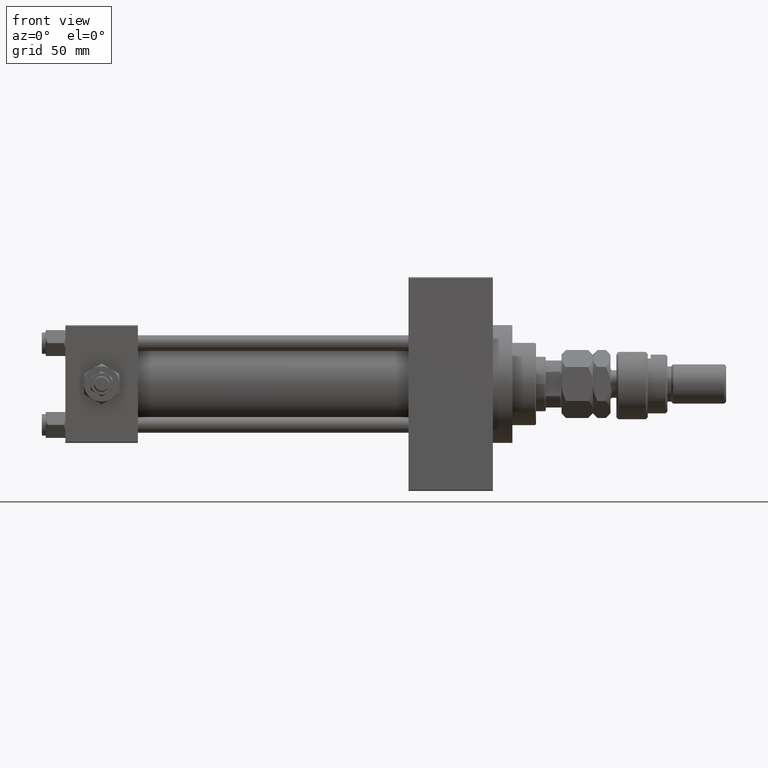
[diagram: clean part render]
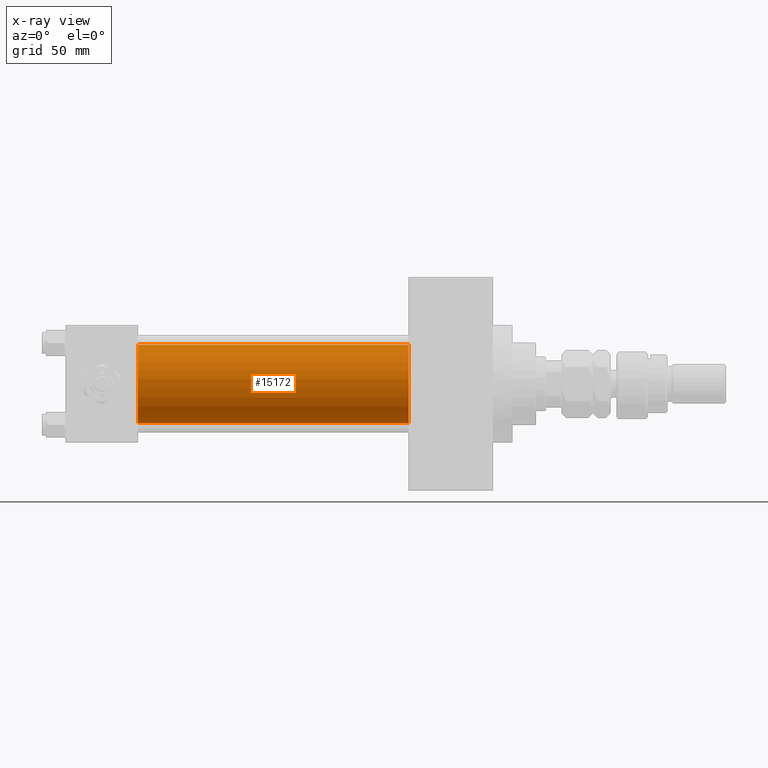
[diagram: x-ray — body ghosted, one internal face saturated and labeled with its STEP entity id]
A machine part, front view, then the same camera in x-ray: the body is ghosted and one INTERNAL B-rep face — a face not visible from any outside direction — is saturated and labeled: STEP entity #15172.
In plain terms, the highlighted cylindrical surface (partial cylindrical patch) has radius 20 mm, axis along (-1, -0, -0).
Its self-contained STEP definition (entity closure, byte-faithful):
#368 = FACE_OUTER_BOUND ( 'NONE', #34881, .T. ) ;
#539 = DIRECTION ( 'NONE',  ( 1.000000000000000000, 0.000000000000000000, 0.000000000000000000 ) ) ;
#1037 = DIRECTION ( 'NONE',  ( 0.000000000000000000, 0.000000000000000000, -1.000000000000000000 ) ) ;
#7016 = LINE ( 'NONE', #10955, #15640 ) ;
#8885 = CARTESIAN_POINT ( 'NONE',  ( 175.0000000000000284, -1.527916156705042519E-16, -20.00000000000000000 ) ) ;
#10955 = CARTESIAN_POINT ( 'NONE',  ( 175.0000000000000284, -2.602085213965210642E-15, 20.00000000000000000 ) ) ;
#11072 = CARTESIAN_POINT ( 'NONE',  ( 175.0000000000000284, -1.527916156705042519E-16, -20.00000000000000000 ) ) ;
#12170 = CYLINDRICAL_SURFACE ( 'NONE', #16386, 20.00000000000000000 ) ;
#15172 = ADVANCED_FACE ( 'NONE', ( #368 ), #12170, .F. ) ;
#15470 = EDGE_CURVE ( 'NONE', #25322, #18522, #18821, .T. ) ;
#15640 = VECTOR ( 'NONE', #26956, 1000.000000000000000 ) ;
#15788 = VERTEX_POINT ( 'NONE', #37339 ) ;
#15902 = VERTEX_POINT ( 'NONE', #46989 ) ;
#16386 = AXIS2_PLACEMENT_3D ( 'NONE', #36822, #24763, #48081 ) ;
#18522 = VERTEX_POINT ( 'NONE', #11072 ) ;
#18821 = CIRCLE ( 'NONE', #36411, 20.00000000000000000 ) ;
#20172 = EDGE_CURVE ( 'NONE', #25322, #15788, #7016, .T. ) ;
#24763 = DIRECTION ( 'NONE',  ( -1.000000000000000000, -0.000000000000000000, -0.000000000000000000 ) ) ;
#25322 = VERTEX_POINT ( 'NONE', #40187 ) ;
#26956 = DIRECTION ( 'NONE',  ( -1.000000000000000000, -0.000000000000000000, -0.000000000000000000 ) ) ;
#28578 = DIRECTION ( 'NONE',  ( 1.000000000000000000, 0.000000000000000000, 0.000000000000000000 ) ) ;
#29593 = LINE ( 'NONE', #8885, #50059 ) ;
#31097 = ORIENTED_EDGE ( 'NONE', *, *, #41033, .F. ) ;
#32535 = DIRECTION ( 'NONE',  ( 0.000000000000000000, 0.000000000000000000, -1.000000000000000000 ) ) ;
#32774 = CARTESIAN_POINT ( 'NONE',  ( 37.00000000000000000, -2.602085213965210642E-15, 0.000000000000000000 ) ) ;
#32797 = CARTESIAN_POINT ( 'NONE',  ( 175.0000000000000284, -2.602085213965210642E-15, 0.000000000000000000 ) ) ;
#33277 = DIRECTION ( 'NONE',  ( -1.000000000000000000, -0.000000000000000000, -0.000000000000000000 ) ) ;
#34881 = EDGE_LOOP ( 'NONE', ( #49701, #48836, #31097, #39376 ) ) ;
#36411 = AXIS2_PLACEMENT_3D ( 'NONE', #32797, #539, #32535 ) ;
#36822 = CARTESIAN_POINT ( 'NONE',  ( 175.0000000000000284, -2.602085213965210642E-15, 0.000000000000000000 ) ) ;
#37339 = CARTESIAN_POINT ( 'NONE',  ( 37.00000000000000000, -2.602085213965210642E-15, 20.00000000000000000 ) ) ;
#39376 = ORIENTED_EDGE ( 'NONE', *, *, #20172, .F. ) ;
#40187 = CARTESIAN_POINT ( 'NONE',  ( 175.0000000000000284, -2.602085213965210642E-15, 20.00000000000000000 ) ) ;
#41033 = EDGE_CURVE ( 'NONE', #15788, #15902, #44161, .T. ) ;
#44161 = CIRCLE ( 'NONE', #50836, 20.00000000000000000 ) ;
#46989 = CARTESIAN_POINT ( 'NONE',  ( 37.00000000000000000, -1.527916156705042519E-16, -20.00000000000000000 ) ) ;
#48081 = DIRECTION ( 'NONE',  ( 0.000000000000000000, 0.000000000000000000, 1.000000000000000000 ) ) ;
#48836 = ORIENTED_EDGE ( 'NONE', *, *, #50455, .T. ) ;
#49701 = ORIENTED_EDGE ( 'NONE', *, *, #15470, .T. ) ;
#50059 = VECTOR ( 'NONE', #33277, 1000.000000000000000 ) ;
#50455 = EDGE_CURVE ( 'NONE', #18522, #15902, #29593, .T. ) ;
#50836 = AXIS2_PLACEMENT_3D ( 'NONE', #32774, #28578, #1037 ) ;